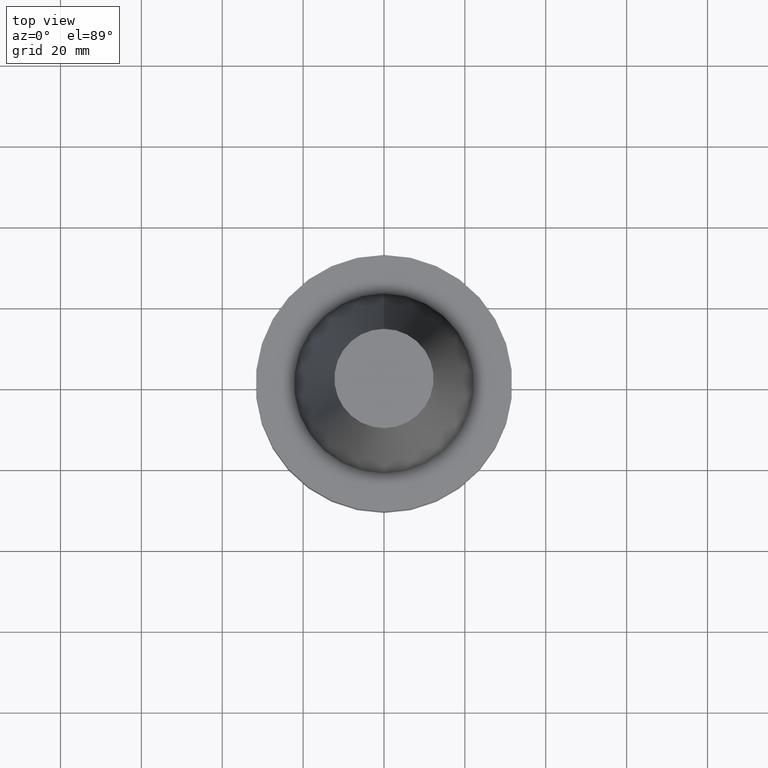
[diagram: clean part render]
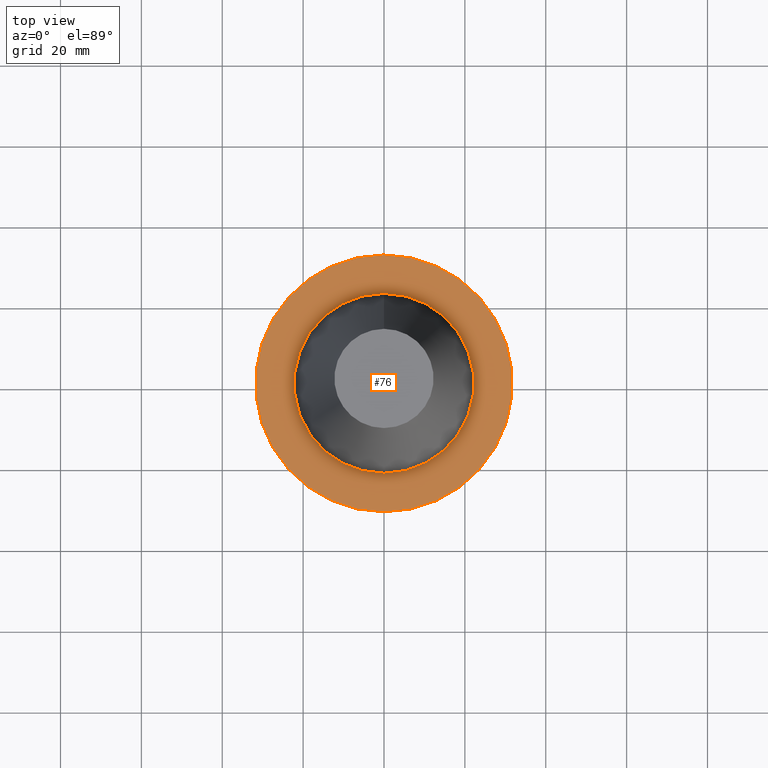
[diagram: same view with one face highlighted and labeled with its STEP entity id]
A machine part, top view. The second image highlights one B-rep face of the part: STEP entity #76.
In plain terms, the highlighted planar face has unit normal (-0, -0, 1).
Its self-contained STEP definition (entity closure, byte-faithful):
#76=ADVANCED_FACE('Unnamed[1]',(#184,#185),#186,.T.);
#95=EDGE_CURVE('Unnamed[1]',#214,#214,#215,.T.);
#108=EDGE_CURVE('Unnamed[1]',#234,#234,#235,.T.);
#184=FACE_OUTER_BOUND('',#324,.T.);
#185=FACE_BOUND('',#325,.T.);
#186=PLANE('',#326);
#214=VERTEX_POINT('',#360);
#215=CIRCLE('',#361,22.225);
#234=VERTEX_POINT('',#386);
#235=CIRCLE('',#387,31.75);
#324=EDGE_LOOP('',(#478));
#325=EDGE_LOOP('',(#479));
#326=AXIS2_PLACEMENT_3D('',#480,#481,#482);
#360=CARTESIAN_POINT('',(6.12323399573674E-017,22.225,-0.999999999999997));
#361=AXIS2_PLACEMENT_3D('',#511,#512,#513);
#386=CARTESIAN_POINT('',(6.12323399573673E-017,31.75,-0.999999999999996));
#387=AXIS2_PLACEMENT_3D('',#532,#533,#534);
#478=ORIENTED_EDGE('',*,*,#108,.F.);
#479=ORIENTED_EDGE('',*,*,#95,.T.);
#480=CARTESIAN_POINT('',(6.12323399573673E-017,26.9875,-0.999999999999997));
#481=DIRECTION('',(-6.12323399573677E-017,-1.22464679914735E-016,1.0));
#482=DIRECTION('',(1.23259516440783E-032,-1.0,-1.22464679914735E-016));
#511=CARTESIAN_POINT('',(6.12323399573677E-017,1.22464679914735E-016,-1.0));
#512=DIRECTION('',(6.12323399573677E-017,1.22464679914735E-016,-1.0));
#513=DIRECTION('',(-1.23259516440783E-032,1.0,1.22464679914735E-016));
#532=CARTESIAN_POINT('',(6.12323399573677E-017,1.22464679914735E-016,-1.0));
#533=DIRECTION('',(6.12323399573677E-017,1.22464679914735E-016,-1.0));
#534=DIRECTION('',(-1.23259516440783E-032,1.0,1.22464679914735E-016));